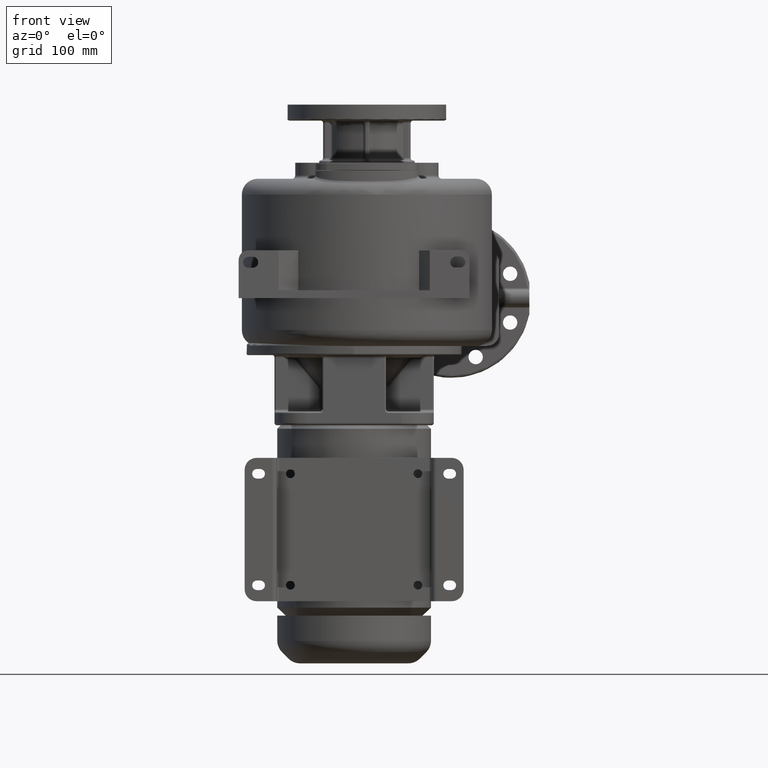
[diagram: clean part render]
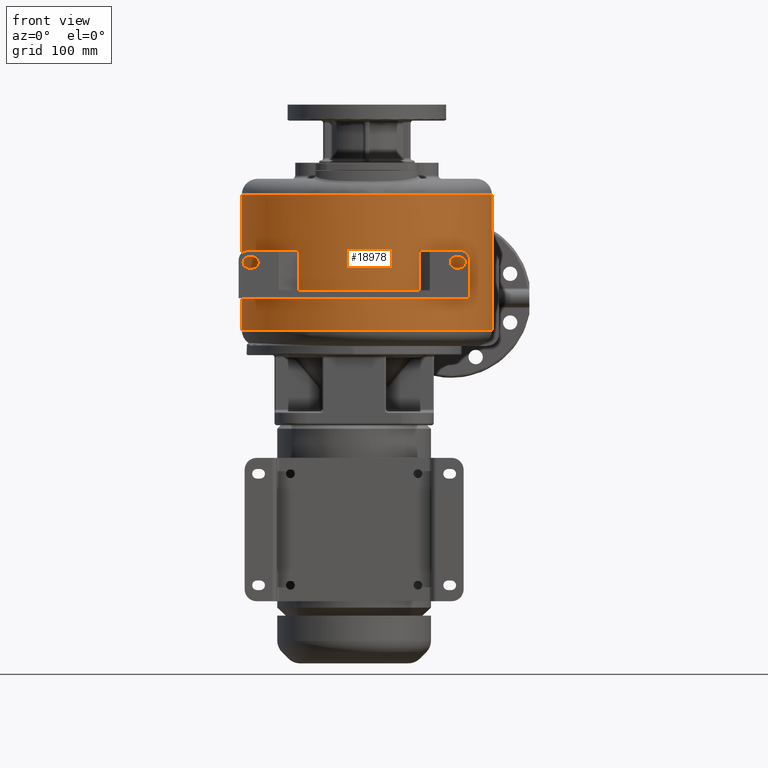
[diagram: same view with one face highlighted and labeled with its STEP entity id]
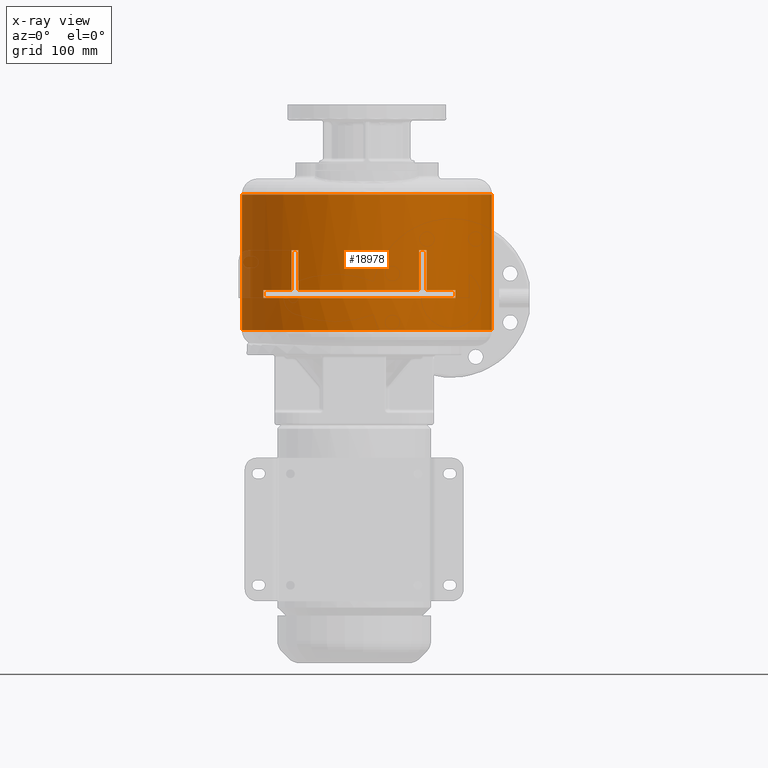
[diagram: x-ray of the same camera — body ghosted, the highlighted face saturated]
A machine part, front view. The second image highlights one B-rep face of the part: STEP entity #18978.
The next image is the same camera in x-ray: the body ghosted, the highlighted face saturated — about 1% of this face is hidden behind the body in this view.
In plain terms, the highlighted cylindrical surface (partial cylindrical patch) has radius 157 mm, axis along (0, 0, -1).
Its self-contained STEP definition (entity closure, byte-faithful):
#2288=CARTESIAN_POINT('',(1.6E1,0.E0,1.175E2));
#2289=DIRECTION('',(0.E0,0.E0,-1.E0));
#2290=DIRECTION('',(1.E0,0.E0,0.E0));
#2291=AXIS2_PLACEMENT_3D('',#2288,#2289,#2290);
#2293=CARTESIAN_POINT('',(1.6E1,0.E0,2.875E2));
#2294=DIRECTION('',(0.E0,0.E0,1.E0));
#2295=DIRECTION('',(-1.E0,0.E0,0.E0));
#2296=AXIS2_PLACEMENT_3D('',#2293,#2294,#2295);
#2298=DIRECTION('',(0.E0,-6.049474646709E-14,1.E0));
#2299=VECTOR('',#2298,1.7E2);
#2300=CARTESIAN_POINT('',(1.73E2,1.977932209719E-11,1.175E2));
#2301=LINE('',#2300,#2299);
#2302=DIRECTION('',(0.E0,0.E0,-1.E0));
#2303=VECTOR('',#2302,1.E1);
#2304=CARTESIAN_POINT('',(1.270762836544E2,-1.109552126289E2,1.675E2));
#2305=LINE('',#2304,#2303);
#2306=CARTESIAN_POINT('',(1.6E1,0.E0,1.675E2));
#2307=DIRECTION('',(0.E0,0.E0,-1.E0));
#2308=DIRECTION('',(7.074922525757E-1,-7.067210995473E-1,0.E0));
#2309=AXIS2_PLACEMENT_3D('',#2306,#2307,#2308);
#2311=DIRECTION('',(0.E0,0.E0,-1.E0));
#2312=VECTOR('',#2311,5.E1);
#2313=CARTESIAN_POINT('',(9.095304129051E1,-1.379530412905E2,2.175E2));
#2314=LINE('',#2313,#2312);
#2315=CARTESIAN_POINT('',(1.6E1,0.E0,2.175E2));
#2316=DIRECTION('',(0.E0,0.E0,-1.E0));
#2317=DIRECTION('',(4.774079063090E-1,-8.786817916593E-1,0.E0));
#2318=AXIS2_PLACEMENT_3D('',#2315,#2316,#2317);
#2320=DIRECTION('',(0.E0,0.E0,-1.E0));
#2321=VECTOR('',#2320,5.E1);
#2322=CARTESIAN_POINT('',(8.152875316710E1,-1.426708887908E2,2.175E2));
#2323=LINE('',#2322,#2321);
#2324=CARTESIAN_POINT('',(1.6E1,0.E0,1.675E2));
#2325=DIRECTION('',(0.E0,0.E0,-1.E0));
#2326=DIRECTION('',(4.173805934210E-1,-9.087317757378E-1,0.E0));
#2327=AXIS2_PLACEMENT_3D('',#2324,#2325,#2326);
#2329=CARTESIAN_POINT('',(1.6E1,0.E0,1.675E2));
#2330=DIRECTION('',(0.E0,0.E0,-1.E0));
#2331=DIRECTION('',(0.E0,-1.E0,0.E0));
#2332=AXIS2_PLACEMENT_3D('',#2329,#2330,#2331);
#2334=DIRECTION('',(0.E0,0.E0,-1.E0));
#2335=VECTOR('',#2334,5.E1);
#2336=CARTESIAN_POINT('',(-7.012597399624E1,-1.312681096200E2,2.175E2));
#2337=LINE('',#2336,#2335);
#2338=CARTESIAN_POINT('',(1.6E1,0.E0,2.175E2));
#2339=DIRECTION('',(0.E0,0.E0,-1.E0));
#2340=DIRECTION('',(-5.485730827786E-1,-8.361026090444E-1,0.E0));
#2341=AXIS2_PLACEMENT_3D('',#2338,#2339,#2340);
#2343=DIRECTION('',(0.E0,0.E0,-1.E0));
#2344=VECTOR('',#2343,5.E1);
#2345=CARTESIAN_POINT('',(-7.842838577911E1,-1.254283857791E2,2.175E2));
#2346=LINE('',#2345,#2344);
#2347=CARTESIAN_POINT('',(1.6E1,0.E0,1.675E2));
#2348=DIRECTION('',(0.E0,0.E0,-1.E0));
#2349=DIRECTION('',(-6.014546864911E-1,-7.989069157905E-1,0.E0));
#2350=AXIS2_PLACEMENT_3D('',#2347,#2348,#2349);
#2352=DIRECTION('',(0.E0,0.E0,-1.E0));
#2353=VECTOR('',#2352,1.E1);
#2354=CARTESIAN_POINT('',(-1.139133158931E2,-8.815628368794E1,1.675E2));
#2355=LINE('',#2354,#2353);
#2364=DIRECTION('',(0.E0,1.129364575714E-13,1.E0));
#2365=VECTOR('',#2364,1.7E2);
#2366=CARTESIAN_POINT('',(-1.41E2,1.812101738004E-11,1.175E2));
#2367=LINE('',#2366,#2365);
#3787=CARTESIAN_POINT('',(1.6E1,0.E0,1.575E2));
#3788=DIRECTION('',(0.E0,0.E0,-1.E0));
#3789=DIRECTION('',(7.074922525757E-1,-7.067210995473E-1,0.E0));
#3790=AXIS2_PLACEMENT_3D('',#3787,#3788,#3789);
#4013=CARTESIAN_POINT('',(1.6E1,0.E0,1.575E2));
#4014=DIRECTION('',(0.E0,0.E0,-1.E0));
#4015=DIRECTION('',(0.E0,-1.E0,0.E0));
#4016=AXIS2_PLACEMENT_3D('',#4013,#4014,#4015);
#15789=CARTESIAN_POINT('',(1.73E2,9.495215197787E-12,2.875E2));
#15790=VERTEX_POINT('',#15789);
#15791=CARTESIAN_POINT('',(-1.41E2,-3.845390949323E-14,2.875E2));
#15792=VERTEX_POINT('',#15791);
#15820=CARTESIAN_POINT('',(1.73E2,1.978150976356E-11,1.175E2));
#15822=VERTEX_POINT('',#15820);
#15823=CARTESIAN_POINT('',(-1.41E2,-3.845390949323E-14,1.175E2));
#15824=VERTEX_POINT('',#15823);
#15870=CARTESIAN_POINT('',(9.095304129051E1,-1.379530412905E2,2.175E2));
#15871=CARTESIAN_POINT('',(8.152875316710E1,-1.426708887908E2,2.175E2));
#15872=VERTEX_POINT('',#15870);
#15873=VERTEX_POINT('',#15871);
#15874=CARTESIAN_POINT('',(-7.012597399624E1,-1.312681096200E2,2.175E2));
#15875=CARTESIAN_POINT('',(-7.842838577911E1,-1.254283857791E2,2.175E2));
#15876=VERTEX_POINT('',#15874);
#15877=VERTEX_POINT('',#15875);
#15882=CARTESIAN_POINT('',(1.270762836544E2,-1.109552126289E2,1.675E2));
#15883=CARTESIAN_POINT('',(9.095304129051E1,-1.379530412905E2,1.675E2));
#15884=VERTEX_POINT('',#15882);
#15885=VERTEX_POINT('',#15883);
#15886=CARTESIAN_POINT('',(8.152875316710E1,-1.426708887908E2,1.675E2));
#15887=CARTESIAN_POINT('',(1.6E1,-1.57E2,1.675E2));
#15888=VERTEX_POINT('',#15886);
#15889=VERTEX_POINT('',#15887);
#15890=CARTESIAN_POINT('',(-7.012597399624E1,-1.312681096200E2,1.675E2));
#15891=VERTEX_POINT('',#15890);
#15892=CARTESIAN_POINT('',(-7.842838577911E1,-1.254283857791E2,1.675E2));
#15893=CARTESIAN_POINT('',(-1.139133158931E2,-8.815628368794E1,1.675E2));
#15894=VERTEX_POINT('',#15892);
#15895=VERTEX_POINT('',#15893);
#15896=CARTESIAN_POINT('',(1.270762836544E2,-1.109552126289E2,1.575E2));
#15897=VERTEX_POINT('',#15896);
#15898=CARTESIAN_POINT('',(-1.139133158931E2,-8.815628368794E1,1.575E2));
#15899=VERTEX_POINT('',#15898);
#15920=CARTESIAN_POINT('',(1.6E1,-1.57E2,1.575E2));
#15921=VERTEX_POINT('',#15920);
#18934=CARTESIAN_POINT('',(1.6E1,0.E0,9.75E1));
#18935=DIRECTION('',(0.E0,0.E0,-1.E0));
#18936=DIRECTION('',(-1.E0,0.E0,0.E0));
#18937=AXIS2_PLACEMENT_3D('',#18934,#18935,#18936);
#18938=CYLINDRICAL_SURFACE('',#18937,1.57E2);
#18939=ORIENTED_EDGE('',*,*,#18916,.T.);
#18941=ORIENTED_EDGE('',*,*,#18940,.T.);
#18943=ORIENTED_EDGE('',*,*,#18942,.T.);
#18945=ORIENTED_EDGE('',*,*,#18944,.F.);
#18946=EDGE_LOOP('',(#18939,#18941,#18943,#18945));
#18947=FACE_OUTER_BOUND('',#18946,.F.);
#18949=ORIENTED_EDGE('',*,*,#18948,.F.);
#18951=ORIENTED_EDGE('',*,*,#18950,.F.);
#18953=ORIENTED_EDGE('',*,*,#18952,.T.);
#18955=ORIENTED_EDGE('',*,*,#18954,.F.);
#18957=ORIENTED_EDGE('',*,*,#18956,.T.);
#18959=ORIENTED_EDGE('',*,*,#18958,.T.);
#18961=ORIENTED_EDGE('',*,*,#18960,.T.);
#18963=ORIENTED_EDGE('',*,*,#18962,.T.);
#18965=ORIENTED_EDGE('',*,*,#18964,.F.);
#18967=ORIENTED_EDGE('',*,*,#18966,.T.);
#18969=ORIENTED_EDGE('',*,*,#18968,.T.);
#18971=ORIENTED_EDGE('',*,*,#18970,.T.);
#18973=ORIENTED_EDGE('',*,*,#18972,.T.);
#18975=ORIENTED_EDGE('',*,*,#18974,.F.);
#18976=EDGE_LOOP('',(#18949,#18951,#18953,#18955,#18957,#18959,#18961,#18963,
#18965,#18967,#18969,#18971,#18973,#18975));
#18977=FACE_BOUND('',#18976,.F.);
#18978=ADVANCED_FACE('',(#18947,#18977),#18938,.T.);
#2292=CIRCLE('',#2291,1.57E2);
#2297=CIRCLE('',#2296,1.57E2);
#2310=CIRCLE('',#2309,1.57E2);
#2319=CIRCLE('',#2318,1.57E2);
#2328=CIRCLE('',#2327,1.57E2);
#2333=CIRCLE('',#2332,1.57E2);
#2342=CIRCLE('',#2341,1.57E2);
#2351=CIRCLE('',#2350,1.57E2);
#3791=CIRCLE('',#3790,1.57E2);
#4017=CIRCLE('',#4016,1.57E2);
#18916=EDGE_CURVE('',#15822,#15824,#2292,.T.);
#18940=EDGE_CURVE('',#15824,#15792,#2367,.T.);
#18942=EDGE_CURVE('',#15792,#15790,#2297,.T.);
#18944=EDGE_CURVE('',#15822,#15790,#2301,.T.);
#18948=EDGE_CURVE('',#15897,#15921,#3791,.T.);
#18950=EDGE_CURVE('',#15884,#15897,#2305,.T.);
#18952=EDGE_CURVE('',#15884,#15885,#2310,.T.);
#18954=EDGE_CURVE('',#15872,#15885,#2314,.T.);
#18956=EDGE_CURVE('',#15872,#15873,#2319,.T.);
#18958=EDGE_CURVE('',#15873,#15888,#2323,.T.);
#18960=EDGE_CURVE('',#15888,#15889,#2328,.T.);
#18962=EDGE_CURVE('',#15889,#15891,#2333,.T.);
#18964=EDGE_CURVE('',#15876,#15891,#2337,.T.);
#18966=EDGE_CURVE('',#15876,#15877,#2342,.T.);
#18968=EDGE_CURVE('',#15877,#15894,#2346,.T.);
#18970=EDGE_CURVE('',#15894,#15895,#2351,.T.);
#18972=EDGE_CURVE('',#15895,#15899,#2355,.T.);
#18974=EDGE_CURVE('',#15921,#15899,#4017,.T.);